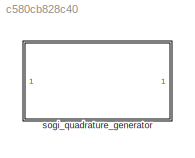
MODEL slx_c580cb828c40
KIND library
CONFIG AbsTol = auto
CONFIG EnableMultiTasking = off
CONFIG FixedStep = auto
CONFIG MaxStep = auto
CONFIG MinStep = auto
CONFIG RelTol = 1e-3
CONFIG SampleTimeConstraint = Unconstrained
CONFIG SolverName = VariableStepAuto
CONFIG StartTime = 0.0
CONFIG StopTime = 10.0
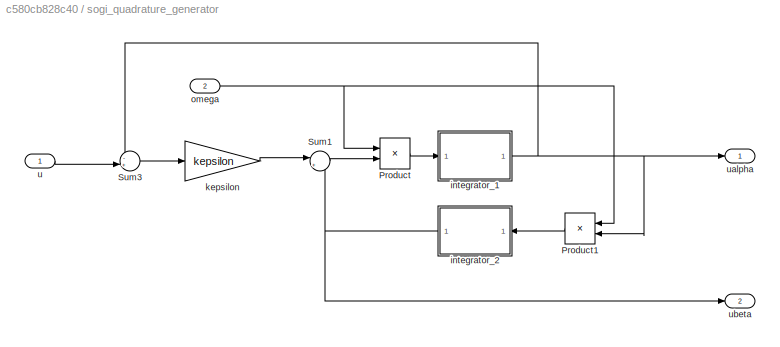
BLOCK [SubSystem] sogi_quadrature_generator
BLOCK [Product] sogi_quadrature_generator/Product
BLOCK [Product] sogi_quadrature_generator/Product1
BLOCK [Sum] sogi_quadrature_generator/Sum1
  Inputs = |+-
  NameLocation = top
BLOCK [Sum] sogi_quadrature_generator/Sum3
  Inputs = -+|
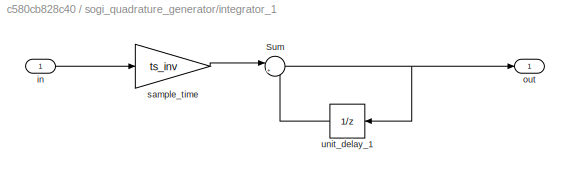
BLOCK [SubSystem] sogi_quadrature_generator/integrator_1
BLOCK [Sum] sogi_quadrature_generator/integrator_1/Sum
  Inputs = |++
BLOCK [Inport] sogi_quadrature_generator/integrator_1/in
BLOCK [Outport] sogi_quadrature_generator/integrator_1/out
BLOCK [Gain] sogi_quadrature_generator/integrator_1/sample_time
  Gain = ts_inv
BLOCK [UnitDelay] sogi_quadrature_generator/integrator_1/unit_delay_1
  HasFrameUpgradeWarning = on
  SampleTime = -1
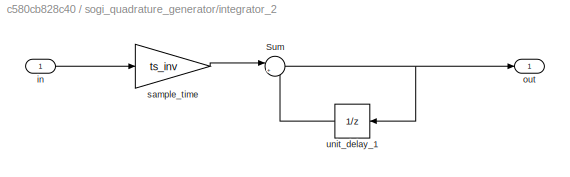
BLOCK [SubSystem] sogi_quadrature_generator/integrator_2
BLOCK [Sum] sogi_quadrature_generator/integrator_2/Sum
  Inputs = |++
BLOCK [Inport] sogi_quadrature_generator/integrator_2/in
BLOCK [Outport] sogi_quadrature_generator/integrator_2/out
BLOCK [Gain] sogi_quadrature_generator/integrator_2/sample_time
  Gain = ts_inv
BLOCK [UnitDelay] sogi_quadrature_generator/integrator_2/unit_delay_1
  HasFrameUpgradeWarning = on
  SampleTime = -1
BLOCK [Gain] sogi_quadrature_generator/kepsilon
  Gain = kepsilon
BLOCK [Inport] sogi_quadrature_generator/omega
  Port = 2
BLOCK [Inport] sogi_quadrature_generator/u
BLOCK [Outport] sogi_quadrature_generator/ualpha
BLOCK [Outport] sogi_quadrature_generator/ubeta
  Port = 2
LINE sogi_quadrature_generator/Product1:1 -> sogi_quadrature_generator/integrator_2:1
LINE sogi_quadrature_generator/Product:1 -> sogi_quadrature_generator/integrator_1:1
LINE sogi_quadrature_generator/Sum1:1 -> sogi_quadrature_generator/Product:2
LINE sogi_quadrature_generator/Sum3:1 -> sogi_quadrature_generator/kepsilon:1
NET sogi_quadrature_generator/integrator_1/Sum:1 -> sogi_quadrature_generator/integrator_1/out:1, sogi_quadrature_generator/integrator_1/unit_delay_1:1
LINE sogi_quadrature_generator/integrator_1/in:1 -> sogi_quadrature_generator/integrator_1/sample_time:1
LINE sogi_quadrature_generator/integrator_1/sample_time:1 -> sogi_quadrature_generator/integrator_1/Sum:1
LINE sogi_quadrature_generator/integrator_1/unit_delay_1:1 -> sogi_quadrature_generator/integrator_1/Sum:2
NET sogi_quadrature_generator/integrator_1:1 -> sogi_quadrature_generator/Product1:2, sogi_quadrature_generator/Sum3:1, sogi_quadrature_generator/ualpha:1
NET sogi_quadrature_generator/integrator_2/Sum:1 -> sogi_quadrature_generator/integrator_2/out:1, sogi_quadrature_generator/integrator_2/unit_delay_1:1
LINE sogi_quadrature_generator/integrator_2/in:1 -> sogi_quadrature_generator/integrator_2/sample_time:1
LINE sogi_quadrature_generator/integrator_2/sample_time:1 -> sogi_quadrature_generator/integrator_2/Sum:1
LINE sogi_quadrature_generator/integrator_2/unit_delay_1:1 -> sogi_quadrature_generator/integrator_2/Sum:2
NET sogi_quadrature_generator/integrator_2:1 -> sogi_quadrature_generator/Sum1:2, sogi_quadrature_generator/ubeta:1
LINE sogi_quadrature_generator/kepsilon:1 -> sogi_quadrature_generator/Sum1:1
NET sogi_quadrature_generator/omega:1 -> sogi_quadrature_generator/Product1:1, sogi_quadrature_generator/Product:1
LINE sogi_quadrature_generator/u:1 -> sogi_quadrature_generator/Sum3:2
note: NET lines group one-source signal fan-out (src -> all destinations, sorted); 1:1 wires keep LINE
